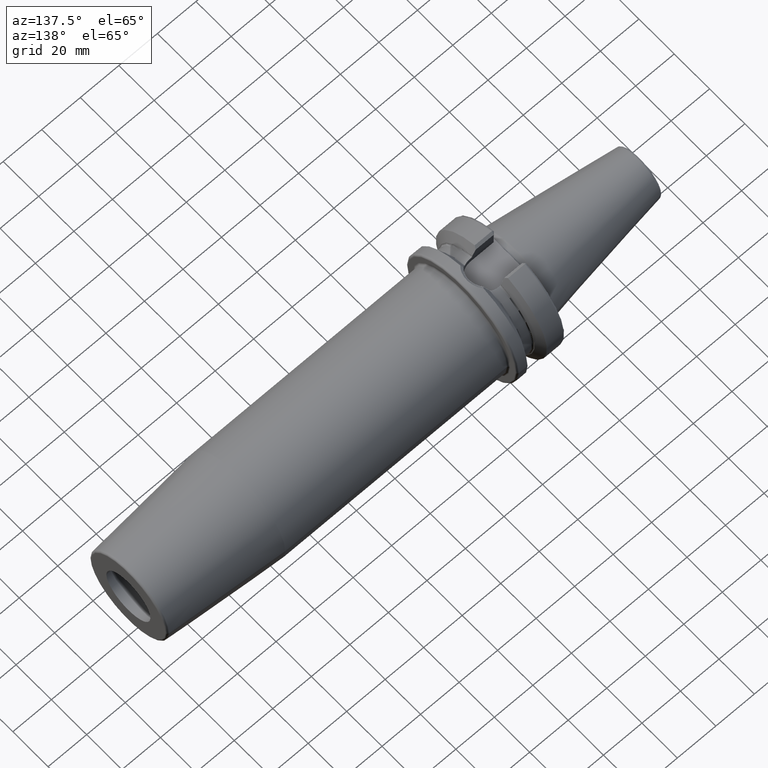
[diagram: clean part render]
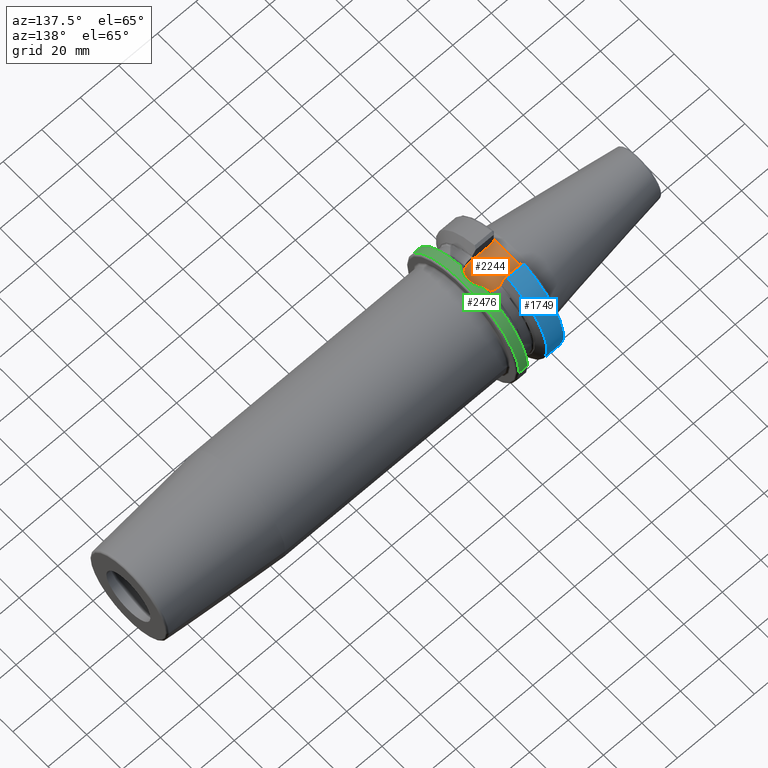
[diagram: same view with three faces highlighted in distinct colors, each labeled with its STEP entity id]
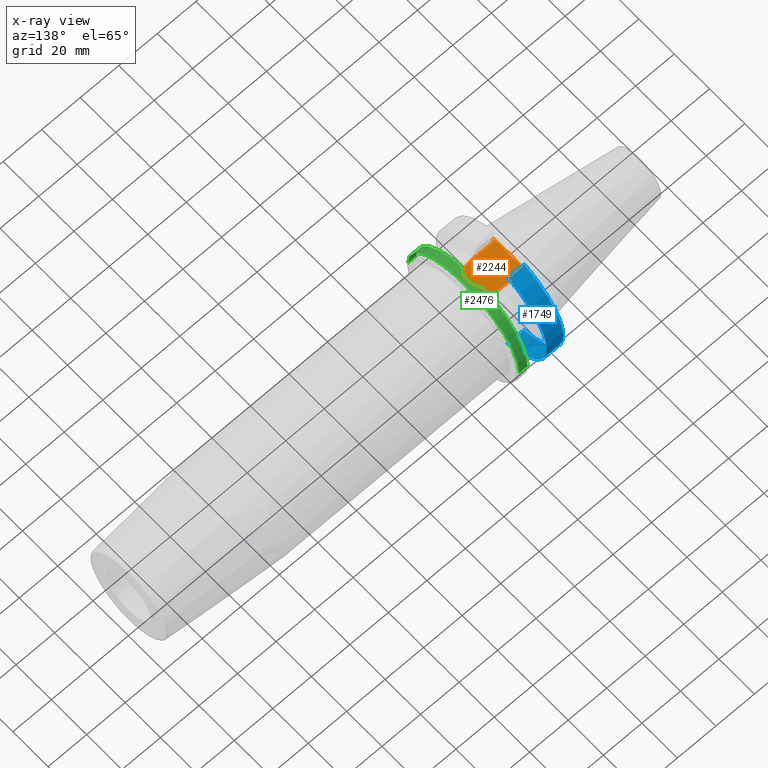
[diagram: x-ray of the same camera — body ghosted, the three highlighted faces saturated]
A machine part, auxiliary view with three faces highlighted in distinct colors.
The next image is the same camera in x-ray (body ghosted, the three faces saturated) — at least one of them is partly hidden behind the body in this view.
Their STEP definitions:

[orange] entity #2244 — the highlighted planar face has unit normal (0, 0, 1).
#680=DIRECTION('',(1.E0,0.E0,0.E0));
#681=VECTOR('',#680,1.2155E1);
#682=CARTESIAN_POINT('',(3.E0,-8.095E0,2.245E1));
#683=LINE('',#682,#681);
#684=DIRECTION('',(0.E0,1.E0,0.E0));
#685=VECTOR('',#684,4.706022328605E0);
#686=CARTESIAN_POINT('',(2.E0,-9.095E0,2.245E1));
#687=LINE('',#686,#685);
#688=DIRECTION('',(0.E0,1.E0,0.E0));
#689=VECTOR('',#688,4.706022328605E0);
#690=CARTESIAN_POINT('',(2.E0,4.388977671395E0,2.245E1));
#691=LINE('',#690,#689);
#692=DIRECTION('',(-1.E0,0.E0,0.E0));
#693=VECTOR('',#692,1.2155E1);
#694=CARTESIAN_POINT('',(1.5155E1,8.095E0,2.245E1));
#695=LINE('',#694,#693);
#696=CARTESIAN_POINT('',(1.5155E1,0.E0,2.245E1));
#697=DIRECTION('',(0.E0,0.E0,1.E0));
#698=DIRECTION('',(0.E0,-1.E0,0.E0));
#699=AXIS2_PLACEMENT_3D('',#696,#697,#698);
#705=DIRECTION('',(7.071067811865E-1,7.071067811865E-1,0.E0));
#706=VECTOR('',#705,1.414213562373E0);
#707=CARTESIAN_POINT('',(2.E0,-9.095E0,2.245E1));
#708=LINE('',#707,#706);
#714=CARTESIAN_POINT('',(2.E0,-4.388977671395E0,2.245E1));
#715=CARTESIAN_POINT('',(2.E0,-3.970864393558E0,2.245E1));
#716=CARTESIAN_POINT('',(1.981114905487E0,-3.134790252725E0,2.245E1));
#717=CARTESIAN_POINT('',(1.935909306649E0,-1.881114481277E0,2.245E1));
#718=CARTESIAN_POINT('',(1.903922826077E0,-6.271978192649E-1,2.245E1));
#719=CARTESIAN_POINT('',(1.903921553166E0,6.271174205746E-1,2.245E1));
#720=CARTESIAN_POINT('',(1.935907277499E0,1.881058976319E0,2.245E1));
#721=CARTESIAN_POINT('',(1.981114329557E0,3.134769380755E0,2.245E1));
#722=CARTESIAN_POINT('',(2.E0,3.970858027314E0,2.245E1));
#723=CARTESIAN_POINT('',(2.E0,4.388977671395E0,2.245E1));
#730=DIRECTION('',(-7.071067811865E-1,7.071067811865E-1,0.E0));
#731=VECTOR('',#730,1.414213562373E0);
#732=CARTESIAN_POINT('',(3.E0,8.095E0,2.245E1));
#733=LINE('',#732,#731);
#1308=CARTESIAN_POINT('',(1.5155E1,-8.095E0,2.245E1));
#1309=CARTESIAN_POINT('',(1.5155E1,8.095E0,2.245E1));
#1310=VERTEX_POINT('',#1308);
#1311=VERTEX_POINT('',#1309);
#1312=CARTESIAN_POINT('',(2.E0,4.388977671395E0,2.245E1));
#1313=VERTEX_POINT('',#1312);
#1314=CARTESIAN_POINT('',(2.E0,-4.388977671395E0,2.245E1));
#1315=VERTEX_POINT('',#1314);
#1349=CARTESIAN_POINT('',(3.E0,-8.095E0,2.245E1));
#1351=VERTEX_POINT('',#1349);
#1353=CARTESIAN_POINT('',(2.E0,-9.095E0,2.245E1));
#1355=VERTEX_POINT('',#1353);
#1362=CARTESIAN_POINT('',(2.E0,9.095E0,2.245E1));
#1363=VERTEX_POINT('',#1362);
#1364=CARTESIAN_POINT('',(3.E0,8.095E0,2.245E1));
#1366=VERTEX_POINT('',#1364);
#2226=CARTESIAN_POINT('',(0.E0,0.E0,2.245E1));
#2227=DIRECTION('',(0.E0,0.E0,1.E0));
#2228=DIRECTION('',(1.E0,0.E0,0.E0));
#2229=AXIS2_PLACEMENT_3D('',#2226,#2227,#2228);
#2230=PLANE('',#2229);
#2231=ORIENTED_EDGE('',*,*,#1992,.F.);
#2233=ORIENTED_EDGE('',*,*,#2232,.F.);
#2234=ORIENTED_EDGE('',*,*,#1603,.T.);
#2236=ORIENTED_EDGE('',*,*,#2235,.T.);
#2237=ORIENTED_EDGE('',*,*,#1581,.T.);
#2239=ORIENTED_EDGE('',*,*,#2238,.F.);
#2240=ORIENTED_EDGE('',*,*,#2217,.F.);
#2241=ORIENTED_EDGE('',*,*,#1963,.F.);
#2242=EDGE_LOOP('',(#2231,#2233,#2234,#2236,#2237,#2239,#2240,#2241));
#2243=FACE_OUTER_BOUND('',#2242,.F.);
#2244=ADVANCED_FACE('',(#2243),#2230,.T.);
#700=CIRCLE('',#699,8.095E0);
#724=B_SPLINE_CURVE_WITH_KNOTS('',3,(#714,#715,#716,#717,#718,#719,#720,#721,
#722,#723),.UNSPECIFIED.,.F.,.F.,(4,1,1,1,1,1,1,4),(0.E0,1.428571428571E-1,
2.857142857143E-1,4.285714285714E-1,5.714285714286E-1,7.142857142857E-1,
8.571428571429E-1,1.E0),.UNSPECIFIED.);
#1581=EDGE_CURVE('',#1313,#1363,#691,.T.);
#1603=EDGE_CURVE('',#1355,#1315,#687,.T.);
#1963=EDGE_CURVE('',#1310,#1311,#700,.T.);
#1992=EDGE_CURVE('',#1351,#1310,#683,.T.);
#2217=EDGE_CURVE('',#1311,#1366,#695,.T.);
#2232=EDGE_CURVE('',#1355,#1351,#708,.T.);
#2235=EDGE_CURVE('',#1315,#1313,#724,.T.);
#2238=EDGE_CURVE('',#1366,#1363,#733,.T.);

[blue] entity #1749 — the highlighted cylindrical surface (partial cylindrical patch) has radius 31.4875 mm, axis along (1, 0, 0).
#228=CARTESIAN_POINT('',(3.E0,0.E0,0.E0));
#229=DIRECTION('',(-1.E0,0.E0,0.E0));
#230=DIRECTION('',(0.E0,2.983189831898E-1,9.544662300305E-1));
#231=AXIS2_PLACEMENT_3D('',#228,#229,#230);
#233=DIRECTION('',(-9.999999999998E-1,-3.572441515959E-7,-4.802508939409E-7));
#234=VECTOR('',#233,8.572722533299E0);
#235=CARTESIAN_POINT('',(1.157272253103E1,9.052779463114E0,-3.015808084481E1));
#236=LINE('',#235,#234);
#237=CARTESIAN_POINT('',(1.157272253103E1,0.E0,0.E0));
#238=DIRECTION('',(1.E0,0.E0,0.E0));
#239=DIRECTION('',(0.E0,2.875039130802E-1,-9.577794631143E-1));
#240=AXIS2_PLACEMENT_3D('',#237,#238,#239);
#242=DIRECTION('',(9.999999999911E-1,2.496639373931E-6,-3.395432034657E-6));
#243=VECTOR('',#242,8.572722551500E0);
#244=CARTESIAN_POINT('',(2.999999979607E0,9.393297580193E0,3.005378452618E1));
#245=LINE('',#244,#243);
#576=CARTESIAN_POINT('',(2.999999997734E0,9.052776400559E0,-3.015808496187E1));
#1344=CARTESIAN_POINT('',(1.157272253103E1,9.052779463114E0,-3.015808084481E1));
#1345=CARTESIAN_POINT('',(1.157272253103E1,9.393318983190E0,3.005375541808E1));
#1346=VERTEX_POINT('',#1344);
#1347=VERTEX_POINT('',#1345);
#1359=CARTESIAN_POINT('',(3.E0,9.393347656107E0,3.005374645633E1));
#1361=VERTEX_POINT('',#1359);
#1376=VERTEX_POINT('',#576);
#1735=CARTESIAN_POINT('',(-7.002E1,0.E0,0.E0));
#1736=DIRECTION('',(1.E0,0.E0,0.E0));
#1737=DIRECTION('',(0.E0,-1.E0,0.E0));
#1738=AXIS2_PLACEMENT_3D('',#1735,#1736,#1737);
#1739=CYLINDRICAL_SURFACE('',#1738,3.14875E1);
#1741=ORIENTED_EDGE('',*,*,#1740,.T.);
#1743=ORIENTED_EDGE('',*,*,#1742,.F.);
#1744=ORIENTED_EDGE('',*,*,#1688,.T.);
#1746=ORIENTED_EDGE('',*,*,#1745,.F.);
#1747=EDGE_LOOP('',(#1741,#1743,#1744,#1746));
#1748=FACE_OUTER_BOUND('',#1747,.F.);
#1749=ADVANCED_FACE('',(#1748),#1739,.T.);
#232=CIRCLE('',#231,3.14875E1);
#241=CIRCLE('',#240,3.14875E1);
#1688=EDGE_CURVE('',#1346,#1347,#241,.T.);
#1740=EDGE_CURVE('',#1361,#1376,#232,.T.);
#1742=EDGE_CURVE('',#1346,#1376,#236,.T.);
#1745=EDGE_CURVE('',#1361,#1347,#245,.T.);

[green] entity #2476 — the highlighted cylindrical surface (partial cylindrical patch) has radius 31.4875 mm, axis along (1, 0, 0).
#251=DIRECTION('',(-1.E0,0.E0,0.E0));
#252=VECTOR('',#251,4.372722531031E0);
#253=CARTESIAN_POINT('',(2.6E1,-3.14875E1,0.E0));
#254=LINE('',#253,#252);
#260=DIRECTION('',(-1.E0,0.E0,0.E0));
#261=VECTOR('',#260,4.372722531031E0);
#262=CARTESIAN_POINT('',(2.6E1,3.14875E1,0.E0));
#263=LINE('',#262,#261);
#787=CARTESIAN_POINT('',(2.162727746897E1,0.E0,0.E0));
#788=DIRECTION('',(1.E0,0.E0,0.E0));
#789=DIRECTION('',(0.E0,1.E0,0.E0));
#790=AXIS2_PLACEMENT_3D('',#787,#788,#789);
#792=CARTESIAN_POINT('',(2.6E1,0.E0,0.E0));
#793=DIRECTION('',(1.E0,0.E0,0.E0));
#794=DIRECTION('',(0.E0,1.E0,0.E0));
#795=AXIS2_PLACEMENT_3D('',#792,#793,#794);
#797=CARTESIAN_POINT('',(2.162727746897E1,0.E0,0.E0));
#798=DIRECTION('',(1.E0,0.E0,0.E0));
#799=DIRECTION('',(0.E0,-2.095835969751E-1,9.777907321503E-1));
#800=AXIS2_PLACEMENT_3D('',#797,#798,#799);
#802=CARTESIAN_POINT('',(2.162727746897E1,6.599266458023E0,3.078818504664E1));
#803=CARTESIAN_POINT('',(2.174833158986E1,6.472647497729E0,3.081532819542E1));
#804=CARTESIAN_POINT('',(2.224001076017E1,5.928319507915E0,3.092859425663E1));
#805=CARTESIAN_POINT('',(2.299264157127E1,4.865473008614E0,3.112101417878E1));
#806=CARTESIAN_POINT('',(2.370802134558E1,3.339564315076E0,3.132339202075E1));
#807=CARTESIAN_POINT('',(2.414652710220E1,1.714273004807E0,3.145540376701E1));
#808=CARTESIAN_POINT('',(2.429811527425E1,4.049253056535E-2,3.150243235345E1));
#809=CARTESIAN_POINT('',(2.416050694460E1,-1.633810434905E0,3.145971127167E1));
#810=CARTESIAN_POINT('',(2.373587321483E1,-3.262379309688E0,3.133159837426E1));
#811=CARTESIAN_POINT('',(2.303364301386E1,-4.794262913871E0,3.113217292109E1));
#812=CARTESIAN_POINT('',(2.227463190406E1,-5.886161097383E0,3.093695745132E1));
#813=CARTESIAN_POINT('',(2.176704574572E1,-6.453064676853E0,3.081952626248E1));
#814=CARTESIAN_POINT('',(2.162727746897E1,-6.599263509754E0,3.078818567858E1));
#1226=CARTESIAN_POINT('',(2.162727746897E1,3.14875E1,0.E0));
#1227=CARTESIAN_POINT('',(2.162727746897E1,6.599266458023E0,3.078818504664E1));
#1228=VERTEX_POINT('',#1226);
#1229=VERTEX_POINT('',#1227);
#1230=CARTESIAN_POINT('',(2.162727746897E1,-3.14875E1,0.E0));
#1232=VERTEX_POINT('',#1230);
#1234=CARTESIAN_POINT('',(2.6E1,3.14875E1,0.E0));
#1235=VERTEX_POINT('',#1234);
#1236=CARTESIAN_POINT('',(2.6E1,-3.14875E1,0.E0));
#1237=VERTEX_POINT('',#1236);
#1238=CARTESIAN_POINT('',(2.162727746897E1,-6.599263509754E0,3.078818567858E1));
#1239=VERTEX_POINT('',#1238);
#2461=CARTESIAN_POINT('',(-7.002E1,0.E0,0.E0));
#2462=DIRECTION('',(1.E0,0.E0,0.E0));
#2463=DIRECTION('',(0.E0,-1.E0,0.E0));
#2464=AXIS2_PLACEMENT_3D('',#2461,#2462,#2463);
#2465=CYLINDRICAL_SURFACE('',#2464,3.14875E1);
#2466=ORIENTED_EDGE('',*,*,#2375,.F.);
#2467=ORIENTED_EDGE('',*,*,#1761,.F.);
#2469=ORIENTED_EDGE('',*,*,#2468,.T.);
#2470=ORIENTED_EDGE('',*,*,#1757,.T.);
#2471=ORIENTED_EDGE('',*,*,#2388,.F.);
#2473=ORIENTED_EDGE('',*,*,#2472,.F.);
#2474=EDGE_LOOP('',(#2466,#2467,#2469,#2470,#2471,#2473));
#2475=FACE_OUTER_BOUND('',#2474,.F.);
#2476=ADVANCED_FACE('',(#2475),#2465,.T.);
#791=CIRCLE('',#790,3.14875E1);
#796=CIRCLE('',#795,3.14875E1);
#801=CIRCLE('',#800,3.14875E1);
#815=B_SPLINE_CURVE_WITH_KNOTS('',3,(#802,#803,#804,#805,#806,#807,#808,#809,
#810,#811,#812,#813,#814),.UNSPECIFIED.,.F.,.F.,(4,1,1,1,1,1,1,1,1,1,4),(0.E0,
3.624421393369E-2,1.514830587561E-1,2.667219035786E-1,3.819607484011E-1,
4.971995932235E-1,6.124384380460E-1,7.276772828685E-1,8.429161276909E-1,
9.581549725134E-1,1.E0),.UNSPECIFIED.);
#1757=EDGE_CURVE('',#1237,#1232,#254,.T.);
#1761=EDGE_CURVE('',#1235,#1228,#263,.T.);
#2375=EDGE_CURVE('',#1228,#1229,#791,.T.);
#2388=EDGE_CURVE('',#1239,#1232,#801,.T.);
#2468=EDGE_CURVE('',#1235,#1237,#796,.T.);
#2472=EDGE_CURVE('',#1229,#1239,#815,.T.);